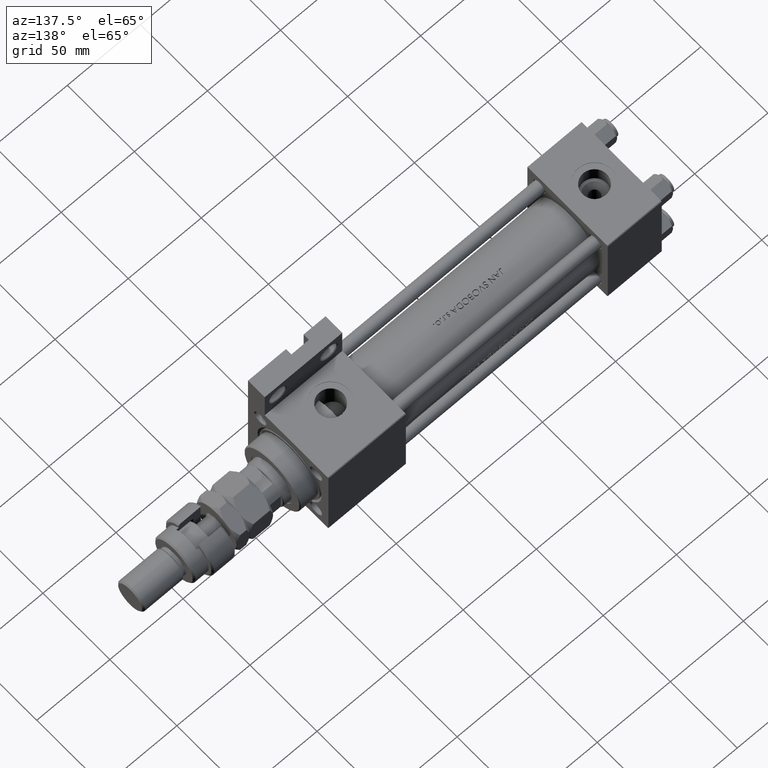
[diagram: clean part render]
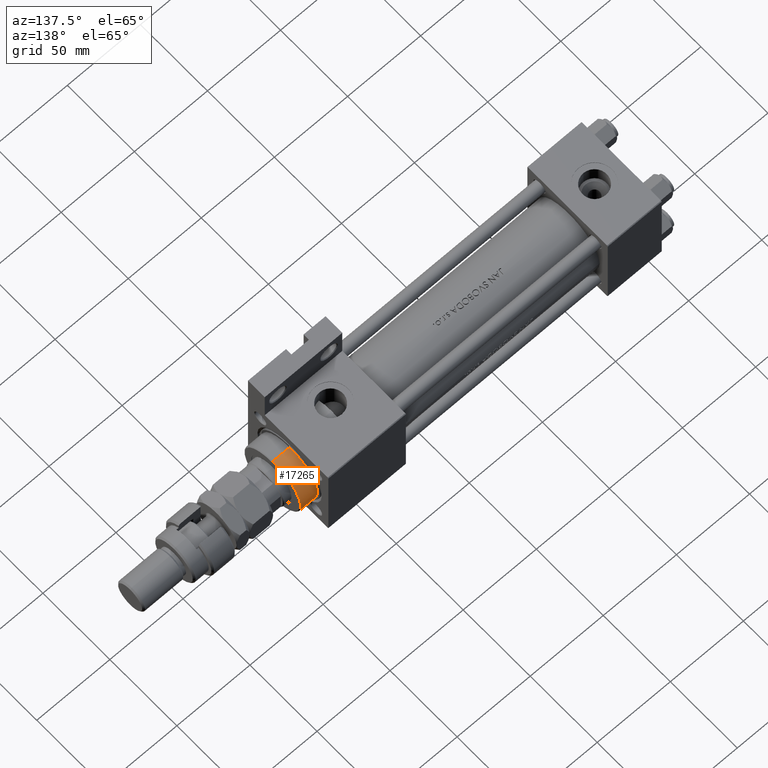
[diagram: same view with one face highlighted and labeled with its STEP entity id]
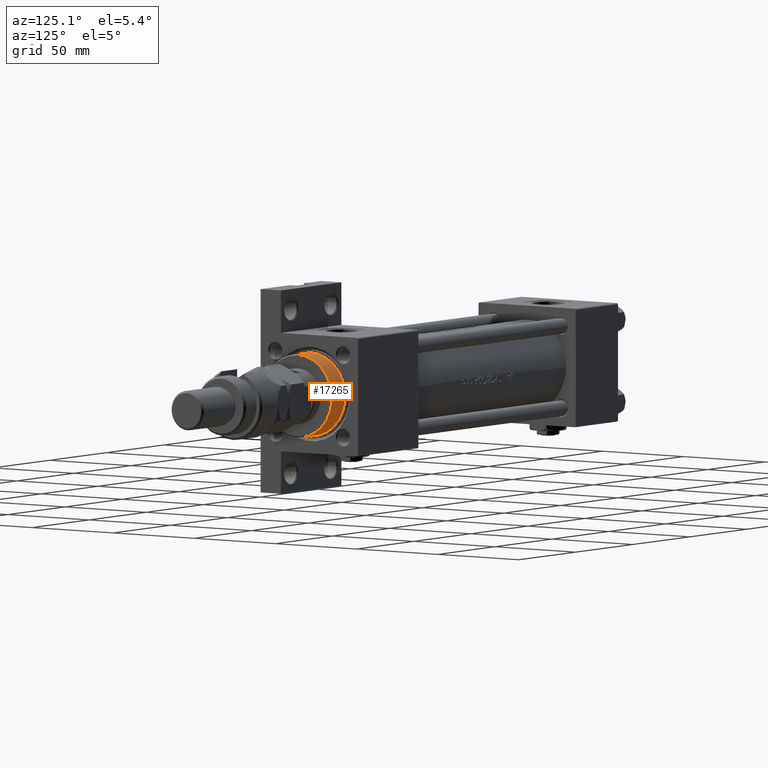
[diagram: same view with one face highlighted and labeled with its STEP entity id]
A machine part, auxiliary view. The second image highlights one B-rep face of the part: STEP entity #17265.
A second angle (auxiliary view) of the same face is appended — the face is thin or edge-on in the first view.
In plain terms, the highlighted cylindrical surface (partial cylindrical patch) has radius 21 mm, axis along (-1, 0, 0).
Its self-contained STEP definition (entity closure, byte-faithful):
#442 = CARTESIAN_POINT ( 'NONE',  ( 0.000000000000000000, 0.000000000000000000, 28.69999999999999929 ) ) ;
#2301 = VERTEX_POINT ( 'NONE', #34975 ) ;
#2512 = EDGE_CURVE ( 'NONE', #7845, #10357, #15341, .T. ) ;
#3375 = AXIS2_PLACEMENT_3D ( 'NONE', #32195, #48989, #28417 ) ;
#5572 = DIRECTION ( 'NONE',  ( 0.000000000000000000, 0.000000000000000000, 1.000000000000000000 ) ) ;
#6162 = CARTESIAN_POINT ( 'NONE',  ( 0.000000000000000000, 0.000000000000000000, 40.70000000000000284 ) ) ;
#6348 = EDGE_CURVE ( 'NONE', #2301, #34559, #51009, .T. ) ;
#6771 = LINE ( 'NONE', #48490, #23640 ) ;
#7402 = CARTESIAN_POINT ( 'NONE',  ( -21.00000000000000000, 0.000000000000000000, 28.69999999999999929 ) ) ;
#7845 = VERTEX_POINT ( 'NONE', #7402 ) ;
#10236 = FACE_OUTER_BOUND ( 'NONE', #11201, .T. ) ;
#10357 = VERTEX_POINT ( 'NONE', #40656 ) ;
#11201 = EDGE_LOOP ( 'NONE', ( #35797, #35512, #52191, #26784 ) ) ;
#13445 = DIRECTION ( 'NONE',  ( 1.000000000000000000, 0.000000000000000000, 0.000000000000000000 ) ) ;
#15341 = CIRCLE ( 'NONE', #38698, 21.00000000000000000 ) ;
#17265 = ADVANCED_FACE ( 'NONE', ( #10236 ), #26792, .T. ) ;
#17744 = AXIS2_PLACEMENT_3D ( 'NONE', #6162, #22701, #39229 ) ;
#21475 = CARTESIAN_POINT ( 'NONE',  ( -21.00000000000000000, 0.000000000000000000, 40.70000000000000284 ) ) ;
#21482 = EDGE_CURVE ( 'NONE', #34559, #7845, #25557, .T. ) ;
#22701 = DIRECTION ( 'NONE',  ( -0.000000000000000000, -0.000000000000000000, -1.000000000000000000 ) ) ;
#23640 = VECTOR ( 'NONE', #39837, 1000.000000000000000 ) ;
#25557 = LINE ( 'NONE', #21475, #31593 ) ;
#26784 = ORIENTED_EDGE ( 'NONE', *, *, #2512, .T. ) ;
#26792 = CYLINDRICAL_SURFACE ( 'NONE', #17744, 21.00000000000000000 ) ;
#28417 = DIRECTION ( 'NONE',  ( 1.000000000000000000, 0.000000000000000000, 0.000000000000000000 ) ) ;
#31593 = VECTOR ( 'NONE', #37989, 1000.000000000000000 ) ;
#32195 = CARTESIAN_POINT ( 'NONE',  ( 0.000000000000000000, 0.000000000000000000, 40.19999999999998863 ) ) ;
#34559 = VERTEX_POINT ( 'NONE', #36564 ) ;
#34975 = CARTESIAN_POINT ( 'NONE',  ( 21.00000000000000000, 2.571758278209441661E-15, 40.19999999999998863 ) ) ;
#35512 = ORIENTED_EDGE ( 'NONE', *, *, #6348, .T. ) ;
#35797 = ORIENTED_EDGE ( 'NONE', *, *, #53123, .F. ) ;
#36564 = CARTESIAN_POINT ( 'NONE',  ( -21.00000000000000000, 0.000000000000000000, 40.19999999999998863 ) ) ;
#37989 = DIRECTION ( 'NONE',  ( -0.000000000000000000, -0.000000000000000000, -1.000000000000000000 ) ) ;
#38698 = AXIS2_PLACEMENT_3D ( 'NONE', #442, #5572, #13445 ) ;
#39229 = DIRECTION ( 'NONE',  ( -1.000000000000000000, 0.000000000000000000, 0.000000000000000000 ) ) ;
#39837 = DIRECTION ( 'NONE',  ( -0.000000000000000000, -0.000000000000000000, -1.000000000000000000 ) ) ;
#40656 = CARTESIAN_POINT ( 'NONE',  ( 21.00000000000000000, 2.571758278209441661E-15, 28.69999999999999929 ) ) ;
#48490 = CARTESIAN_POINT ( 'NONE',  ( 21.00000000000000000, 2.571758278209441661E-15, 40.70000000000000284 ) ) ;
#48989 = DIRECTION ( 'NONE',  ( 0.000000000000000000, 0.000000000000000000, -1.000000000000000000 ) ) ;
#51009 = CIRCLE ( 'NONE', #3375, 21.00000000000000000 ) ;
#52191 = ORIENTED_EDGE ( 'NONE', *, *, #21482, .T. ) ;
#53123 = EDGE_CURVE ( 'NONE', #2301, #10357, #6771, .T. ) ;